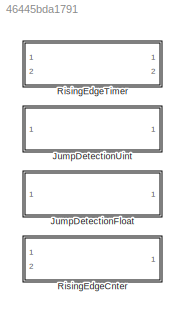
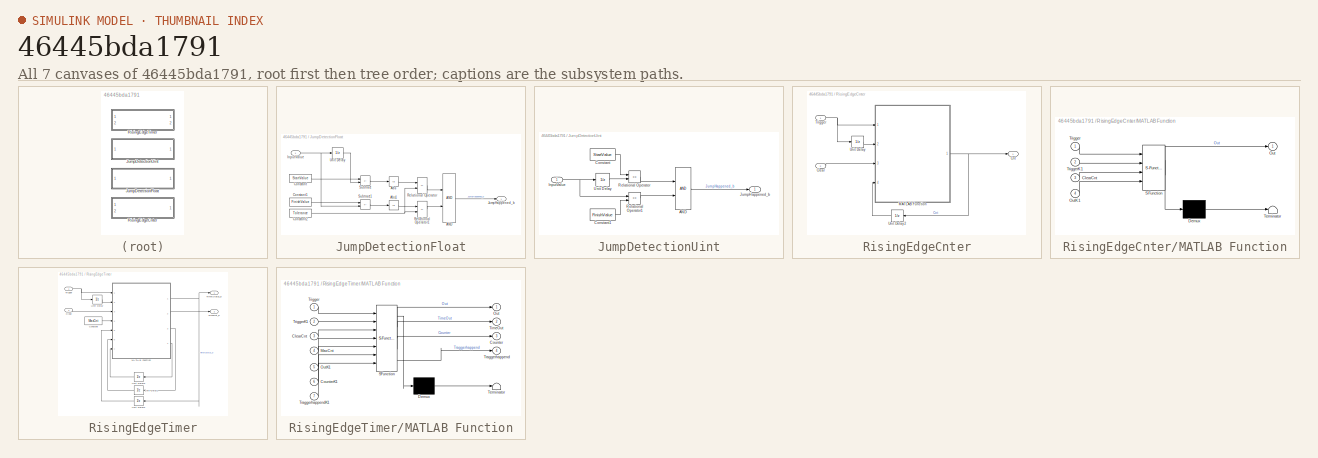
[diagram: thumbnail index - all 7 canvases of the model, root first then tree order]
MODEL slx_46445bda1791
KIND library
CONFIG AbsTol = auto
CONFIG EnableMultiTasking = off
CONFIG FixedStep = auto
CONFIG MaxStep = auto
CONFIG MinStep = auto
CONFIG RelTol = 1e-3
CONFIG SampleTimeConstraint = Unconstrained
CONFIG SolverName = VariableStepAuto
CONFIG StartTime = 0.0
CONFIG StopTime = 10.0
BLOCK [SubSystem] JumpDetectionFloat
  Ports = [1, 1]
  RequestExecContextInheritance = off
BLOCK [Logic] JumpDetectionFloat/AND
  AllPortsSameDT = off
  OutDataTypeStr = boolean
  Ports = [2, 1]
BLOCK [Abs] JumpDetectionFloat/Abs
  SaturateOnIntegerOverflow = off
BLOCK [Abs] JumpDetectionFloat/Abs1
  SaturateOnIntegerOverflow = off
BLOCK [Constant] JumpDetectionFloat/Constant
  OutDataTypeStr = single
  Value = StartValue
BLOCK [Constant] JumpDetectionFloat/Constant1
  OutDataTypeStr = single
  Value = FinishValue
BLOCK [Constant] JumpDetectionFloat/Constant2
  OutDataTypeStr = single
  Value = Tolerance
BLOCK [Inport] JumpDetectionFloat/InputValue
  OutDataTypeStr = single
BLOCK [Outport] JumpDetectionFloat/JumpHappened_b
BLOCK [RelationalOperator] JumpDetectionFloat/Relational Operator
  InputSameDT = off
  Operator = <=
  OutDataTypeStr = boolean
  Ports = [2, 1]
  RndMeth = Simplest
BLOCK [RelationalOperator] JumpDetectionFloat/Relational Operator1
  InputSameDT = off
  Operator = <=
  OutDataTypeStr = boolean
  Ports = [2, 1]
  RndMeth = Simplest
BLOCK [Sum] JumpDetectionFloat/Subtract
  IconShape = rectangular
  Inputs = +-
  Ports = [2, 1]
BLOCK [Sum] JumpDetectionFloat/Subtract1
  IconShape = rectangular
  Inputs = +-
  Ports = [2, 1]
BLOCK [UnitDelay] JumpDetectionFloat/Unit Delay
  HasFrameUpgradeWarning = on
  SampleTime = -1
BLOCK [SubSystem] JumpDetectionUint
  Ports = [1, 1]
  RequestExecContextInheritance = off
BLOCK [Logic] JumpDetectionUint/AND
  AllPortsSameDT = off
  OutDataTypeStr = boolean
  Ports = [2, 1]
BLOCK [Constant] JumpDetectionUint/Constant
  OutDataTypeStr = uint8
  Value = StartValue
BLOCK [Constant] JumpDetectionUint/Constant1
  OutDataTypeStr = uint8
  Value = FinishValue
BLOCK [Inport] JumpDetectionUint/InputValue
  OutDataTypeStr = uint8
BLOCK [Outport] JumpDetectionUint/JumpHappened_b
BLOCK [RelationalOperator] JumpDetectionUint/Relational Operator
  InputSameDT = off
  Operator = ==
  OutDataTypeStr = boolean
  Ports = [2, 1]
  RndMeth = Simplest
BLOCK [RelationalOperator] JumpDetectionUint/Relational Operator1
  InputSameDT = off
  Operator = ==
  OutDataTypeStr = boolean
  Ports = [2, 1]
  RndMeth = Simplest
BLOCK [UnitDelay] JumpDetectionUint/Unit Delay
  HasFrameUpgradeWarning = on
  SampleTime = -1
BLOCK [SubSystem] RisingEdgeCnter
  Ports = [2, 1]
  RequestExecContextInheritance = off
BLOCK [Inport] RisingEdgeCnter/Clear
  OutDataTypeStr = boolean
  Port = 2
BLOCK [Outport] RisingEdgeCnter/Cnt
  OutDataTypeStr = uint8
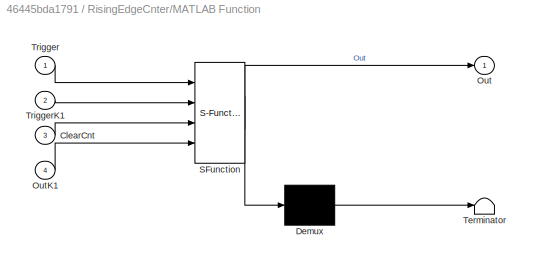
BLOCK [SubSystem] RisingEdgeCnter/MATLAB Function
  ErrorFcn = Stateflow.Translate.translate
  PermitHierarchicalResolution = ExplicitOnly
  Ports = [4, 1]
  RequestExecContextInheritance = off
  SFBlockType = MATLAB Function
  TreatAsAtomicUnit = on
BLOCK [Demux] RisingEdgeCnter/MATLAB Function/ Demux 
  Outputs = 1
  Ports = [1, 1]
BLOCK [S-Function] RisingEdgeCnter/MATLAB Function/ SFunction 
  EnableBusSupport = off
  FunctionName = sf_sfun
  PortCounts = [4 2]
  Ports = [4, 2]
  SFcnIsStateOwnerBlock = off
  SFunctionDeploymentMode = off
  Tag = Stateflow S-Function 2
BLOCK [Terminator] RisingEdgeCnter/MATLAB Function/ Terminator 
BLOCK [Inport] RisingEdgeCnter/MATLAB Function/ClearCnt
  Port = 3
BLOCK [Outport] RisingEdgeCnter/MATLAB Function/Out
BLOCK [Inport] RisingEdgeCnter/MATLAB Function/OutK1
  Port = 4
BLOCK [Inport] RisingEdgeCnter/MATLAB Function/Trigger
BLOCK [Inport] RisingEdgeCnter/MATLAB Function/TriggerK1
  Port = 2
BLOCK [Inport] RisingEdgeCnter/Trigger
  OutDataTypeStr = boolean
BLOCK [UnitDelay] RisingEdgeCnter/Unit Delay
  HasFrameUpgradeWarning = on
  SampleTime = -1
BLOCK [UnitDelay] RisingEdgeCnter/Unit Delay2
  HasFrameUpgradeWarning = on
  SampleTime = -1
BLOCK [SubSystem] RisingEdgeTimer
  Ports = [2, 2]
  RequestExecContextInheritance = off
BLOCK [Inport] RisingEdgeTimer/Clear
  OutDataTypeStr = boolean
  Port = 2
BLOCK [Constant] RisingEdgeTimer/Constant
  OutDataTypeStr = uint16
  Value = MaxCnt
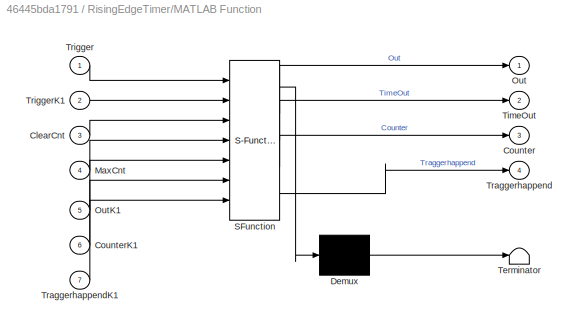
BLOCK [SubSystem] RisingEdgeTimer/MATLAB Function
  ErrorFcn = Stateflow.Translate.translate
  PermitHierarchicalResolution = ExplicitOnly
  Ports = [7, 4]
  RequestExecContextInheritance = off
  SFBlockType = MATLAB Function
  TreatAsAtomicUnit = on
BLOCK [Demux] RisingEdgeTimer/MATLAB Function/ Demux 
  Outputs = 1
  Ports = [1, 1]
BLOCK [S-Function] RisingEdgeTimer/MATLAB Function/ SFunction 
  EnableBusSupport = off
  FunctionName = sf_sfun
  PortCounts = [7 5]
  Ports = [7, 5]
  SFcnIsStateOwnerBlock = off
  SFunctionDeploymentMode = off
  Tag = Stateflow S-Function 1
BLOCK [Terminator] RisingEdgeTimer/MATLAB Function/ Terminator 
BLOCK [Inport] RisingEdgeTimer/MATLAB Function/ClearCnt
  Port = 3
BLOCK [Outport] RisingEdgeTimer/MATLAB Function/Counter
  Port = 3
BLOCK [Inport] RisingEdgeTimer/MATLAB Function/CounterK1
  Port = 6
BLOCK [Inport] RisingEdgeTimer/MATLAB Function/MaxCnt
  Port = 4
BLOCK [Outport] RisingEdgeTimer/MATLAB Function/Out
BLOCK [Inport] RisingEdgeTimer/MATLAB Function/OutK1
  Port = 5
BLOCK [Outport] RisingEdgeTimer/MATLAB Function/TimeOut
  Port = 2
BLOCK [Outport] RisingEdgeTimer/MATLAB Function/Traggerhappend
  Port = 4
BLOCK [Inport] RisingEdgeTimer/MATLAB Function/TraggerhappendK1
  Port = 7
BLOCK [Inport] RisingEdgeTimer/MATLAB Function/Trigger
BLOCK [Inport] RisingEdgeTimer/MATLAB Function/TriggerK1
  Port = 2
BLOCK [Outport] RisingEdgeTimer/TimeOut_b
  OutDataTypeStr = boolean
  Port = 2
BLOCK [Outport] RisingEdgeTimer/TimerStatus_b
  OutDataTypeStr = boolean
BLOCK [Inport] RisingEdgeTimer/Trigger
  OutDataTypeStr = boolean
BLOCK [UnitDelay] RisingEdgeTimer/Unit Delay
  HasFrameUpgradeWarning = on
  SampleTime = -1
BLOCK [UnitDelay] RisingEdgeTimer/Unit Delay1
  HasFrameUpgradeWarning = on
  SampleTime = -1
BLOCK [UnitDelay] RisingEdgeTimer/Unit Delay2
  HasFrameUpgradeWarning = on
  SampleTime = -1
BLOCK [UnitDelay] RisingEdgeTimer/Unit Delay3
  HasFrameUpgradeWarning = on
  SampleTime = -1
LINE JumpDetectionFloat/AND:1 -> JumpDetectionFloat/JumpHappened_b:1
LINE JumpDetectionFloat/Abs1:1 -> JumpDetectionFloat/Relational Operator1:1
LINE JumpDetectionFloat/Abs:1 -> JumpDetectionFloat/Relational Operator:1
LINE JumpDetectionFloat/Constant1:1 -> JumpDetectionFloat/Subtract1:1
NET JumpDetectionFloat/Constant2:1 -> JumpDetectionFloat/Relational Operator1:2, JumpDetectionFloat/Relational Operator:2
LINE JumpDetectionFloat/Constant:1 -> JumpDetectionFloat/Subtract:1
NET JumpDetectionFloat/InputValue:1 -> JumpDetectionFloat/Subtract1:2, JumpDetectionFloat/Unit Delay:1
LINE JumpDetectionFloat/Relational Operator1:1 -> JumpDetectionFloat/AND:2
LINE JumpDetectionFloat/Relational Operator:1 -> JumpDetectionFloat/AND:1
LINE JumpDetectionFloat/Subtract1:1 -> JumpDetectionFloat/Abs1:1
LINE JumpDetectionFloat/Subtract:1 -> JumpDetectionFloat/Abs:1
LINE JumpDetectionFloat/Unit Delay:1 -> JumpDetectionFloat/Subtract:2
LINE JumpDetectionUint/AND:1 -> JumpDetectionUint/JumpHappened_b:1
LINE JumpDetectionUint/Constant1:1 -> JumpDetectionUint/Relational Operator1:2
LINE JumpDetectionUint/Constant:1 -> JumpDetectionUint/Relational Operator:1
NET JumpDetectionUint/InputValue:1 -> JumpDetectionUint/Relational Operator1:1, JumpDetectionUint/Unit Delay:1
LINE JumpDetectionUint/Relational Operator1:1 -> JumpDetectionUint/AND:2
LINE JumpDetectionUint/Relational Operator:1 -> JumpDetectionUint/AND:1
LINE JumpDetectionUint/Unit Delay:1 -> JumpDetectionUint/Relational Operator:2
LINE RisingEdgeCnter/Clear:1 -> RisingEdgeCnter/MATLAB Function:3
NET RisingEdgeCnter/MATLAB Function:1 -> RisingEdgeCnter/Cnt:1, RisingEdgeCnter/Unit Delay2:1
NET RisingEdgeCnter/Trigger:1 -> RisingEdgeCnter/MATLAB Function:1, RisingEdgeCnter/Unit Delay:1
LINE RisingEdgeCnter/Unit Delay2:1 -> RisingEdgeCnter/MATLAB Function:4
LINE RisingEdgeCnter/Unit Delay:1 -> RisingEdgeCnter/MATLAB Function:2
LINE RisingEdgeTimer/Clear:1 -> RisingEdgeTimer/MATLAB Function:3
LINE RisingEdgeTimer/Constant:1 -> RisingEdgeTimer/MATLAB Function:4
NET RisingEdgeTimer/MATLAB Function:1 -> RisingEdgeTimer/TimerStatus_b:1, RisingEdgeTimer/Unit Delay2:1
LINE RisingEdgeTimer/MATLAB Function:2 -> RisingEdgeTimer/TimeOut_b:1
LINE RisingEdgeTimer/MATLAB Function:3 -> RisingEdgeTimer/Unit Delay1:1
LINE RisingEdgeTimer/MATLAB Function:4 -> RisingEdgeTimer/Unit Delay3:1
NET RisingEdgeTimer/Trigger:1 -> RisingEdgeTimer/MATLAB Function:1, RisingEdgeTimer/Unit Delay:1
LINE RisingEdgeTimer/Unit Delay1:1 -> RisingEdgeTimer/MATLAB Function:6
LINE RisingEdgeTimer/Unit Delay2:1 -> RisingEdgeTimer/MATLAB Function:5
LINE RisingEdgeTimer/Unit Delay3:1 -> RisingEdgeTimer/MATLAB Function:7
LINE RisingEdgeTimer/Unit Delay:1 -> RisingEdgeTimer/MATLAB Function:2
note: NET lines group one-source signal fan-out (src -> all destinations, sorted); 1:1 wires keep LINE
CHART RisingEdgeTimer/MATLAB Function states=1 transitions=1
  STATE_LABEL 'eML_blk_kernel()'
  STATE_LABEL 'SCRIPT:\nfunction [Out,TimeOut,Counter,Traggerhappend] = RisingEdgeTimer(Trigger,TriggerK1, ClearCnt, MaxCnt,OutK1, CounterK1,TraggerhappendK1)\n%#codegen\nTimeOut=false;\nTraggerhappend=TraggerhappendK1;\nif MaxCnt~=0\n    if (Trigger==1)&&(TriggerK1==0)\n        Counter = MaxCnt;\n        Traggerhappend=true;\n    elseif CounterK1 > 0x0\n        Counter = CounterK1 - uint16(1);\n    else\n        Counter = ...<+477ch>'
CHART RisingEdgeCnter/MATLAB Function states=1 transitions=1
  STATE_LABEL 'eML_blk_kernel()'
  STATE_LABEL 'SCRIPT:\nfunction Out  = RisingEdgeTimer(Trigger,TriggerK1, ClearCnt, OutK1)\n%#codegen\n    if (Trigger==1)&&(TriggerK1==0)\n        Out = OutK1+1;     \n    else\n        Out = OutK1;\n    end \n    if ClearCnt\n        Out = uint8(0);\n    end\nend\n\n\n\n'
CHART  states=0 transitions=0
CHART  states=0 transitions=0
